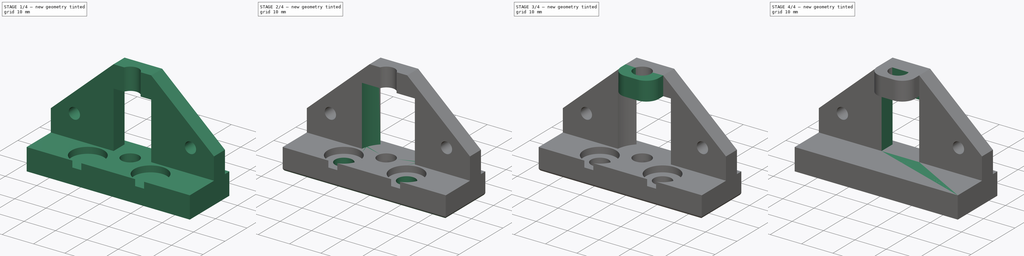
[diagram: build sequence overview — one tinted view per stage of 4, left to right]
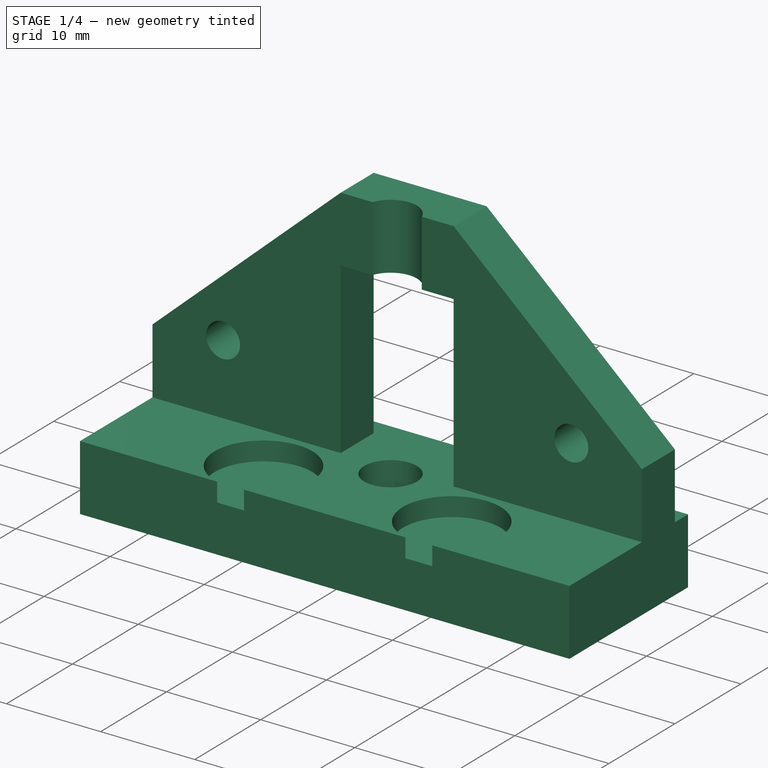
[diagram: stage 1 of 4 — iso view after this stage's code; geometry added in this stage tinted green]
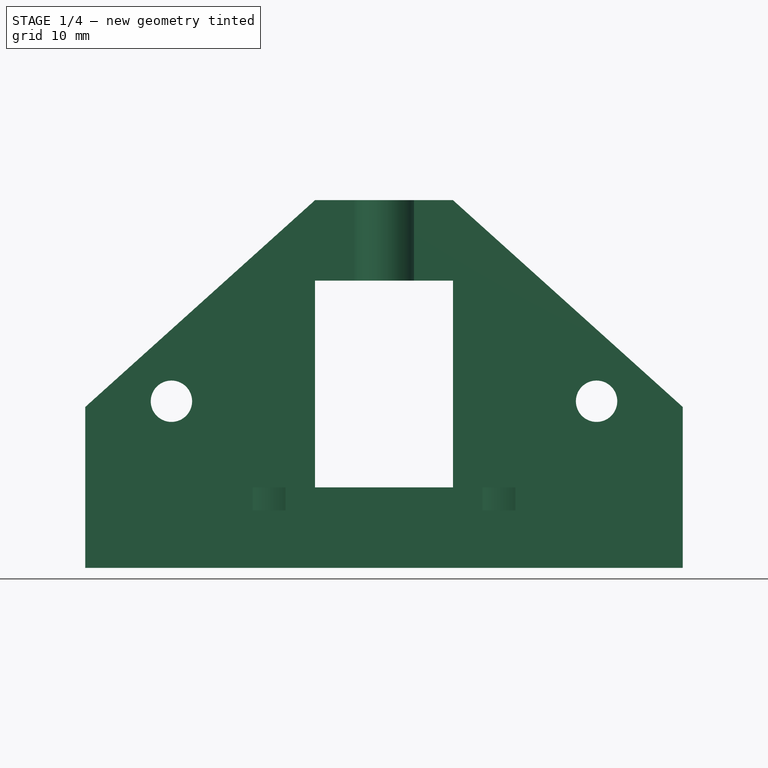
[diagram: stage 1 of 4 — front view after this stage's code; geometry added in this stage tinted green]
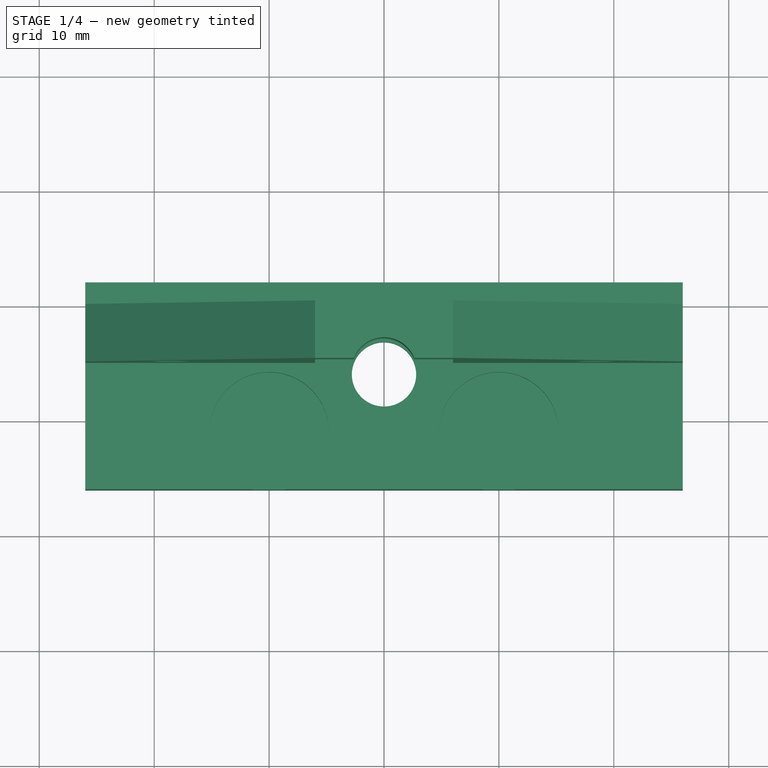
[diagram: stage 1 of 4 — top view after this stage's code; geometry added in this stage tinted green]
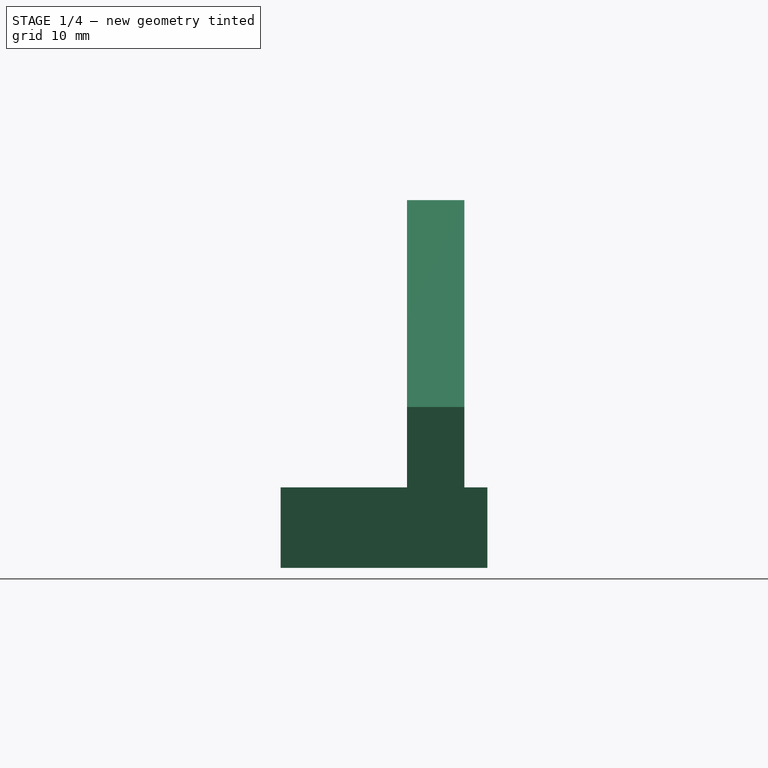
[diagram: stage 1 of 4 — right view after this stage's code; geometry added in this stage tinted green]
FCSTD DOCUMENT  (FreeCAD 0.16R6698 (Git))
Label: pnp head rail mount plate
License: All rights reserved
LicenseURL: http://en.wikipedia.org/wiki/All_rights_reserved
objects: Sketcher::SketchObject×10, PartDesign::Pocket×7, PartDesign::Pad×3, PartDesign::Fillet×2
note: 32 computed .brp shape members not serialized (recipe doc carries the construction recipe); baked Part::Feature solids carry a one-line shape summary decoded from their .brp

FEATURE [PartDesign::Pocket] Pocket002
  Length = 5
  Sketch = -> Sketch005
  Type = 0
FEATURE [Sketcher::SketchObject] Sketch004
  Placement = pos=(0,0,7) rot=(0,0,1;0rad)
  Support = -> Pocket002 [Face6]
  sketch-geometry (2):
    g0: Circle CenterX=-10 CenterY=-11 CenterZ=0 NormalX=0 NormalY=0 NormalZ=1 Radius=5.2
    g1: Circle CenterX=10 CenterY=-11 CenterZ=0 NormalX=0 NormalY=0 NormalZ=1 Radius=5.2
  constraints (2):
    c: Radius(g0) = 5.2
    c: Equal(g0,g1)
FEATURE [PartDesign::Pocket] Pocket003
  Length = 2
  Sketch = -> Sketch004
  Type = 0
FEATURE [Sketcher::SketchObject] Sketch008
  Placement = pos=(0,0,32) rot=(0,0,1;0rad)
  Support = -> Pocket003 [Face1]
  sketch-geometry (1):
    g0: Circle CenterX=0 CenterY=-6 CenterZ=0 NormalX=0 NormalY=0 NormalZ=1 Radius=2.8
  constraints (2):
    c: PointOnObject(g0,g-2)
    c: Radius(g0) = 2.8
FEATURE [PartDesign::Pocket] Pocket005
  Length = 5
  Sketch = -> Sketch008
  Type = 1
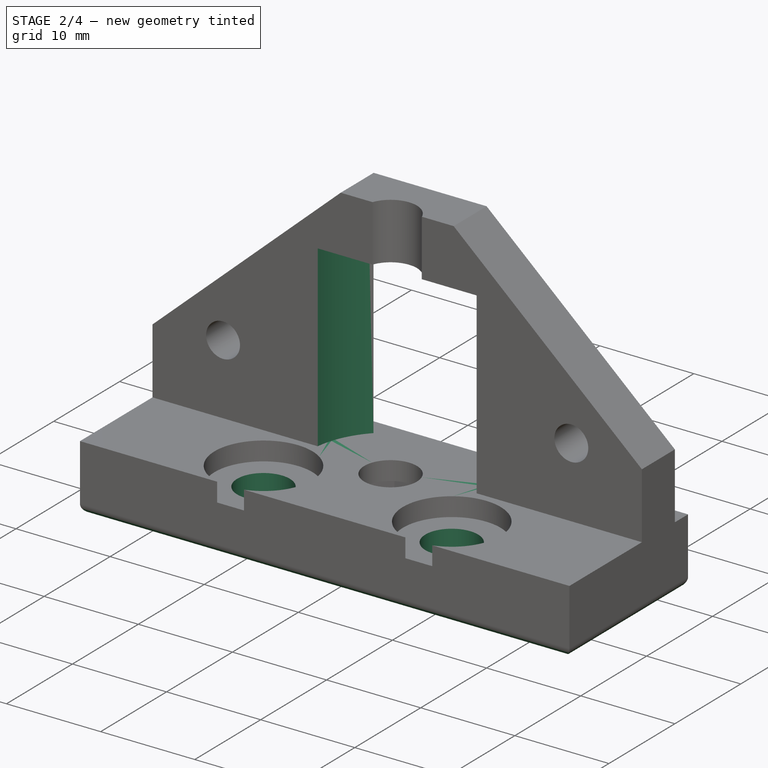
[diagram: stage 2 of 4 — iso view after this stage's code; geometry added in this stage tinted green]
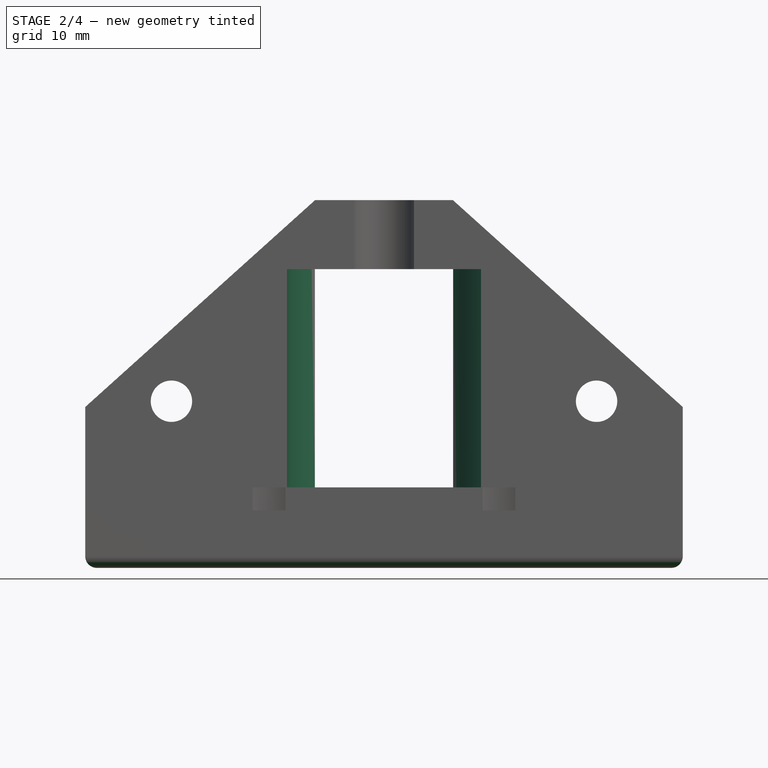
[diagram: stage 2 of 4 — front view after this stage's code; geometry added in this stage tinted green]
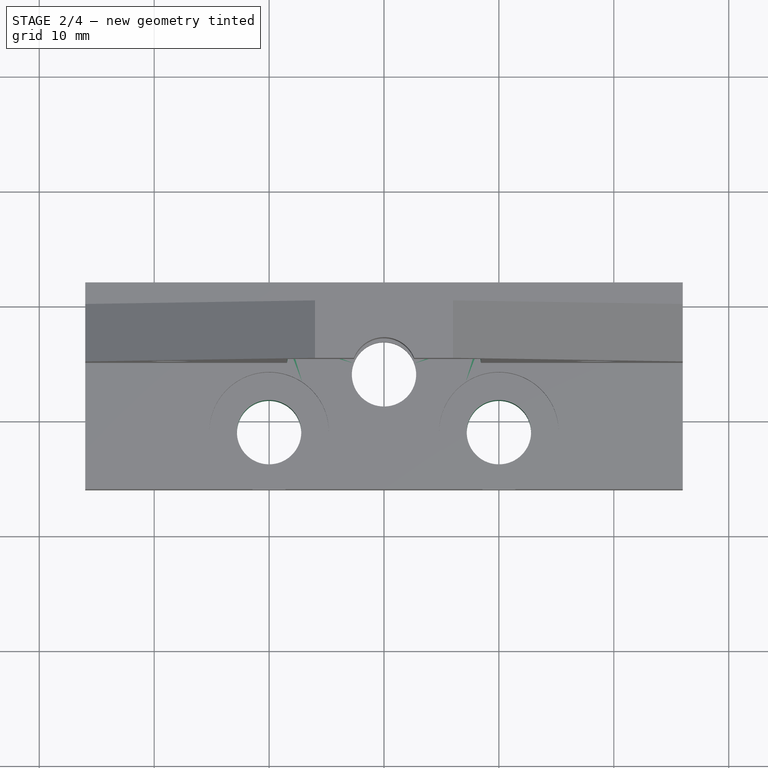
[diagram: stage 2 of 4 — top view after this stage's code; geometry added in this stage tinted green]
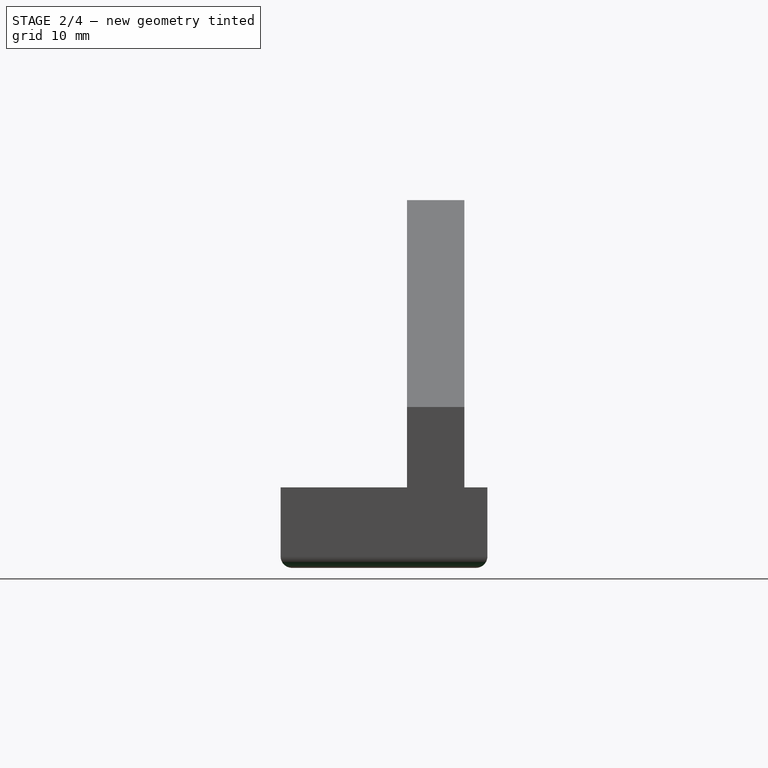
[diagram: stage 2 of 4 — right view after this stage's code; geometry added in this stage tinted green]
FEATURE [Sketcher::SketchObject] Sketch003
  Placement = pos=(0,0,7) rot=(0,0,1;0rad)
  Support = -> Pocket005 [Face8]
  sketch-geometry (4):
    g0: Circle CenterX=0 CenterY=-6 CenterZ=0 NormalX=0 NormalY=0 NormalZ=1 Radius=2.8
    g1: Circle CenterX=10 CenterY=-11 CenterZ=0 NormalX=0 NormalY=0 NormalZ=1 Radius=2.8
    g2: Circle CenterX=-10 CenterY=-11 CenterZ=0 NormalX=0 NormalY=0 NormalZ=1 Radius=2.8
    g3: Circle [constr] CenterX=0 CenterY=-6 CenterZ=0 NormalX=0 NormalY=0 NormalZ=1 Radius=5.5
  constraints (8):
    c: PointOnObject(g0,g-2)
    c: Radius(g0) = 2.8
    c: Equal(g2,g0)
    c: Equal(g0,g1)
    c: Symmetric(g2,g1,g-2)
    c: DistanceX(g2,g-1) = 10
    c: Coincident(g3,g0)
    c: Radius(g3) = 5.5
FEATURE [PartDesign::Pocket] Pocket006
  Length = 5
  Sketch = -> Sketch003
  Type = 1
FEATURE [Sketcher::SketchObject] Sketch009
  Placement = pos=(0,0,7) rot=(0,0,1;0rad)
  Support = -> Pocket006 [Face8]
  sketch-geometry (1):
    g0: Circle CenterX=0 CenterY=-6 CenterZ=0 NormalX=0 NormalY=0 NormalZ=1 Radius=8.5
FEATURE [PartDesign::Pocket] Pocket007
  Length = 19
  Reversed = true
  Sketch = -> Sketch009
  Type = 0
FEATURE [PartDesign::Fillet] Fillet001
  Base = -> Pocket007 [Edge46,Edge53,Edge51,Edge41]
  Radius = 1
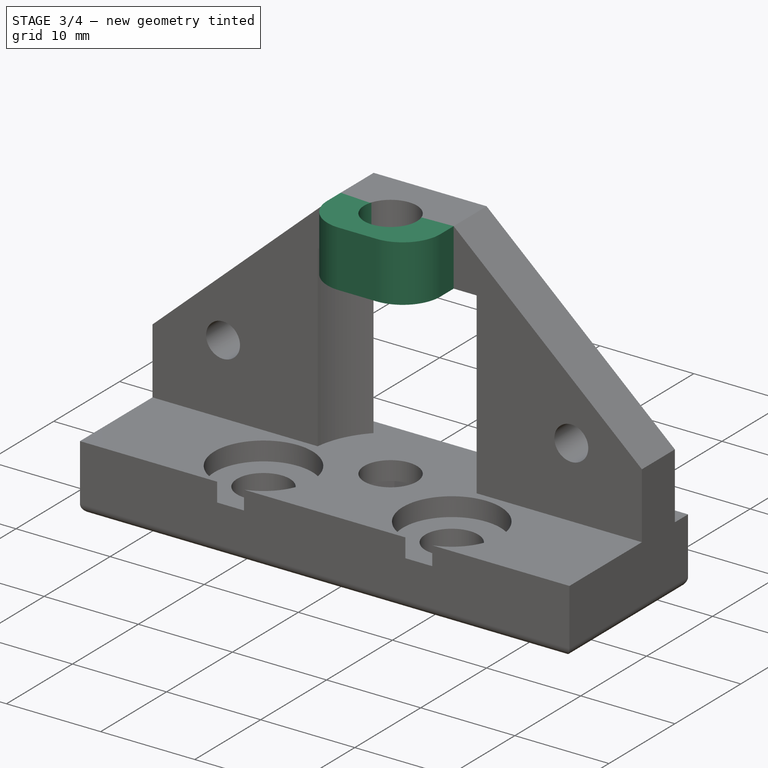
[diagram: stage 3 of 4 — iso view after this stage's code; geometry added in this stage tinted green]
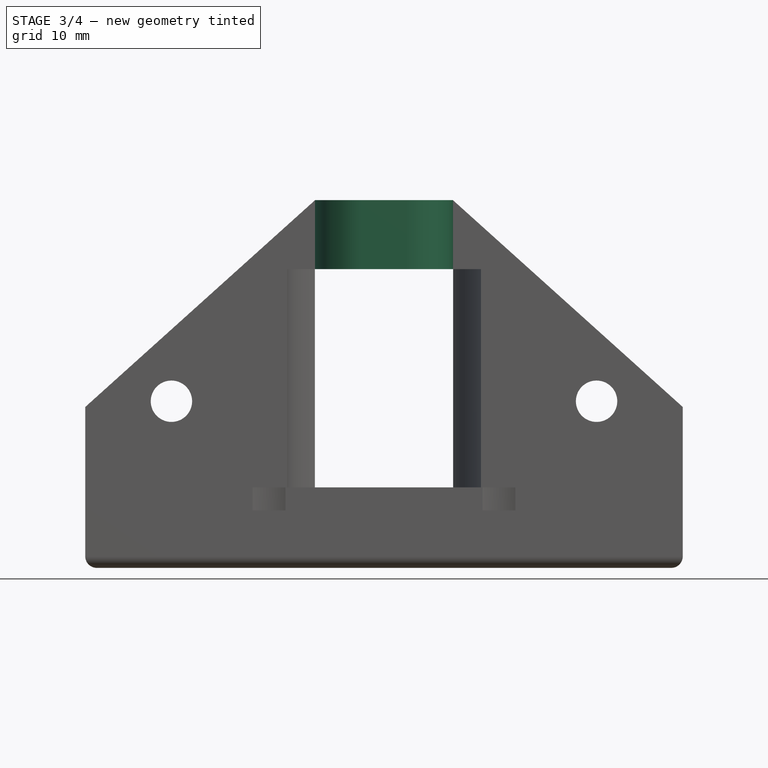
[diagram: stage 3 of 4 — front view after this stage's code; geometry added in this stage tinted green]
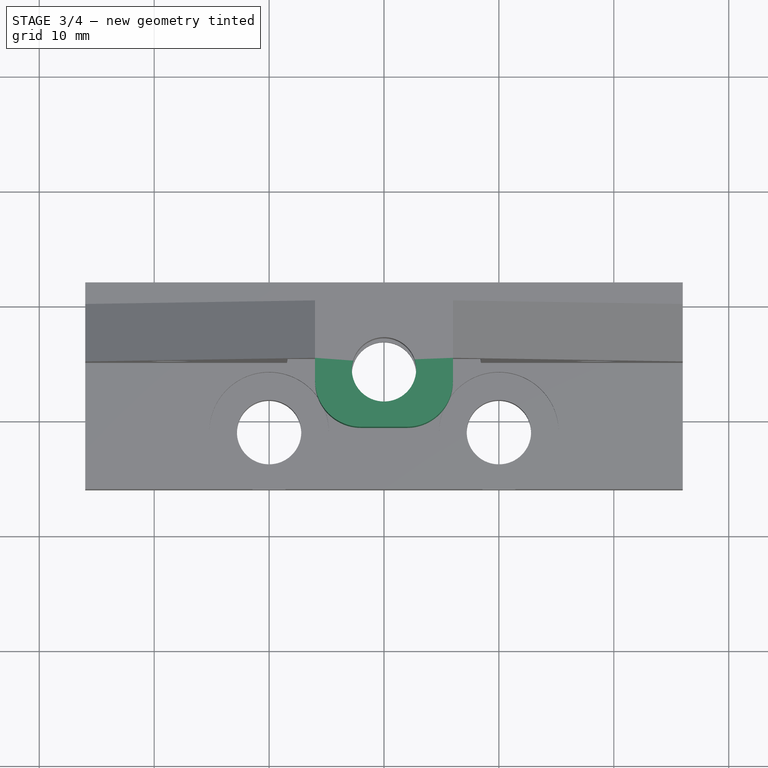
[diagram: stage 3 of 4 — top view after this stage's code; geometry added in this stage tinted green]
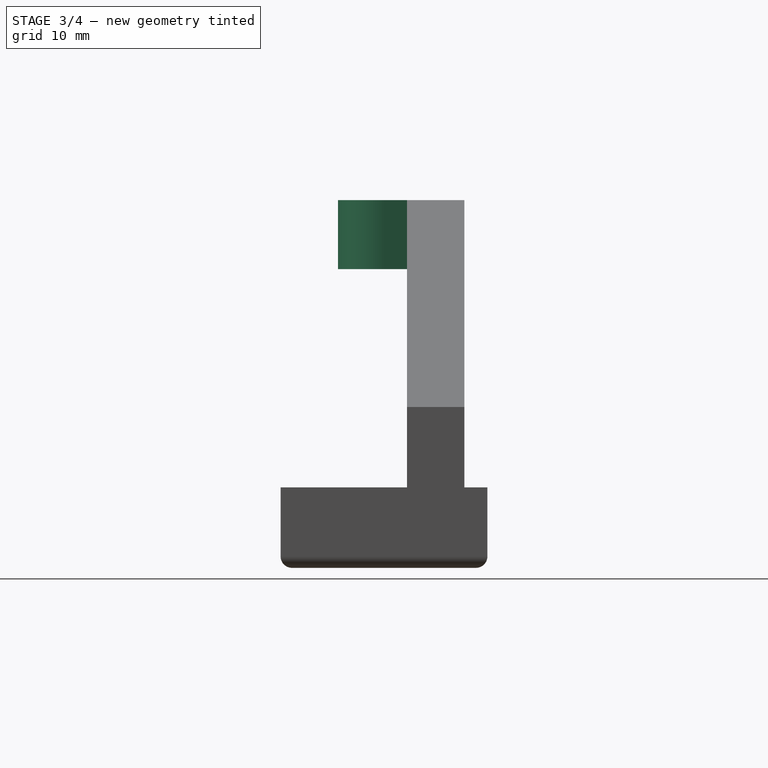
[diagram: stage 3 of 4 — right view after this stage's code; geometry added in this stage tinted green]
FEATURE [Sketcher::SketchObject] Sketch006
  Placement = pos=(0,-5,0) rot=(1,0,0;1.5708rad)
  sketch-geometry (4):
    g0: LineSegment StartX=-6 StartY=32 StartZ=0 EndX=6 EndY=32 EndZ=0
    g1: LineSegment StartX=6 StartY=32 StartZ=0 EndX=6 EndY=26 EndZ=0
    g2: LineSegment StartX=6 StartY=26 StartZ=0 EndX=-6 EndY=26 EndZ=0
    g3: LineSegment StartX=-6 StartY=26 StartZ=0 EndX=-6 EndY=32 EndZ=0
  constraints (8):
    c: Coincident(g0,g1)
    c: Coincident(g1,g2)
    c: Coincident(g2,g3)
    c: Coincident(g3,g0)
    c: Horizontal(g0)
    c: Horizontal(g2)
    c: Vertical(g1)
    c: Vertical(g3)
FEATURE [PartDesign::Pad] Pad002
  Length = 6
  Length2 = 100
  Placement = pos=(0,-5,0) rot=(1,0,0;1.5708rad)
  Sketch = -> Sketch006
  Type = 0
FEATURE [Sketcher::SketchObject] Sketch007
  Placement = pos=(0,-5,32) rot=(0,0,1;3.14159rad)
  Support = -> Pad002 [Face1]
  sketch-geometry (1):
    g0: Circle CenterX=0 CenterY=1 CenterZ=0 NormalX=0 NormalY=0 NormalZ=1 Radius=2.8
  constraints (2):
    c: PointOnObject(g0,g-2)
    c: Radius(g0) = 2.8
FEATURE [PartDesign::Pocket] Pocket004
  Length = 5
  Placement = pos=(0,-5,0) rot=(1,0,0;1.5708rad)
  Sketch = -> Sketch007
  Type = 1
FEATURE [PartDesign::Fillet] Fillet
  Base = -> Pocket004 [Edge17,Edge15]
  Placement = pos=(0,-5,0) rot=(1,0,0;1.5708rad)
  Radius = 4
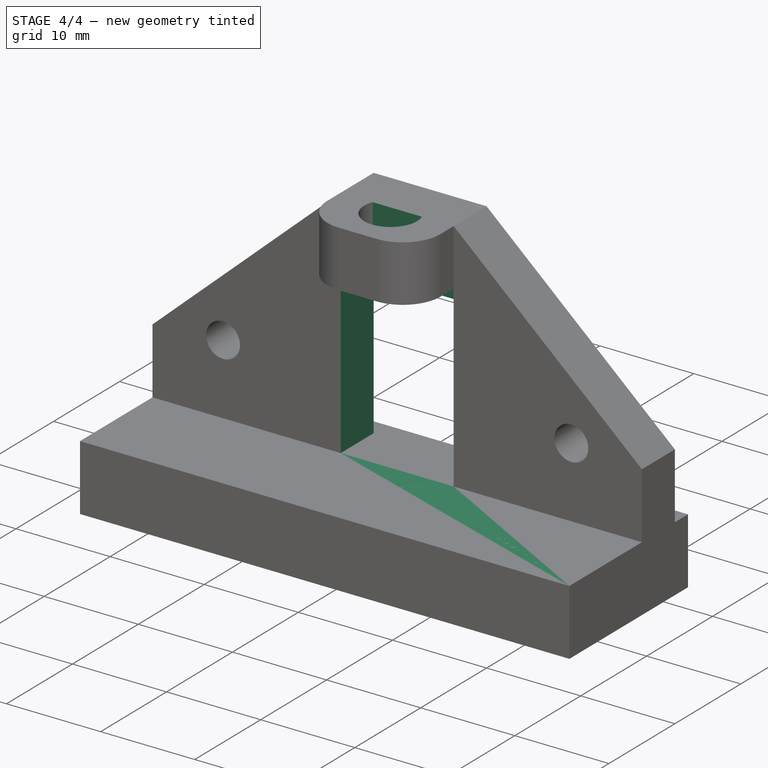
[diagram: stage 4 of 4 — iso view after this stage's code; geometry added in this stage tinted green]
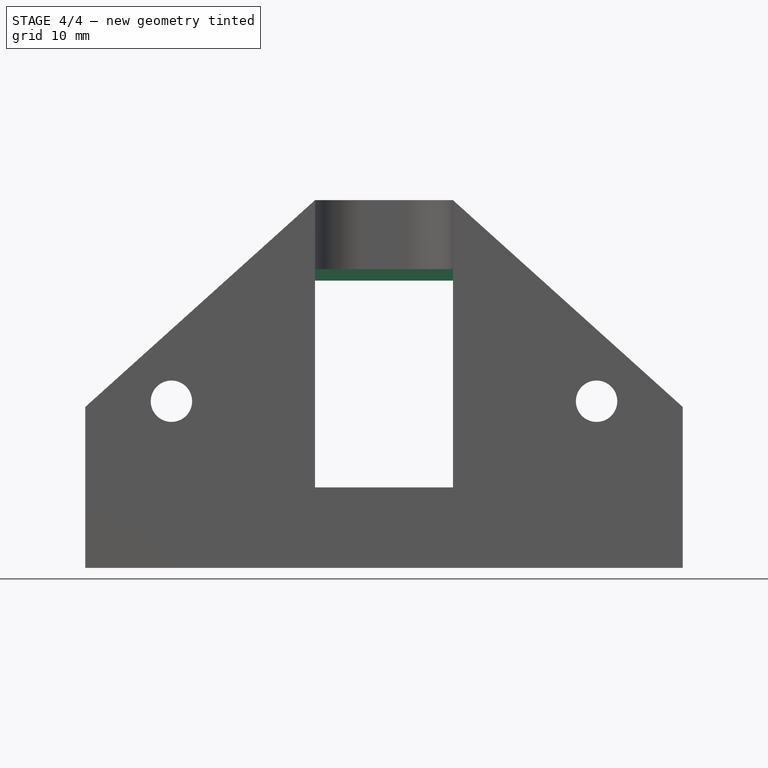
[diagram: stage 4 of 4 — front view after this stage's code; geometry added in this stage tinted green]
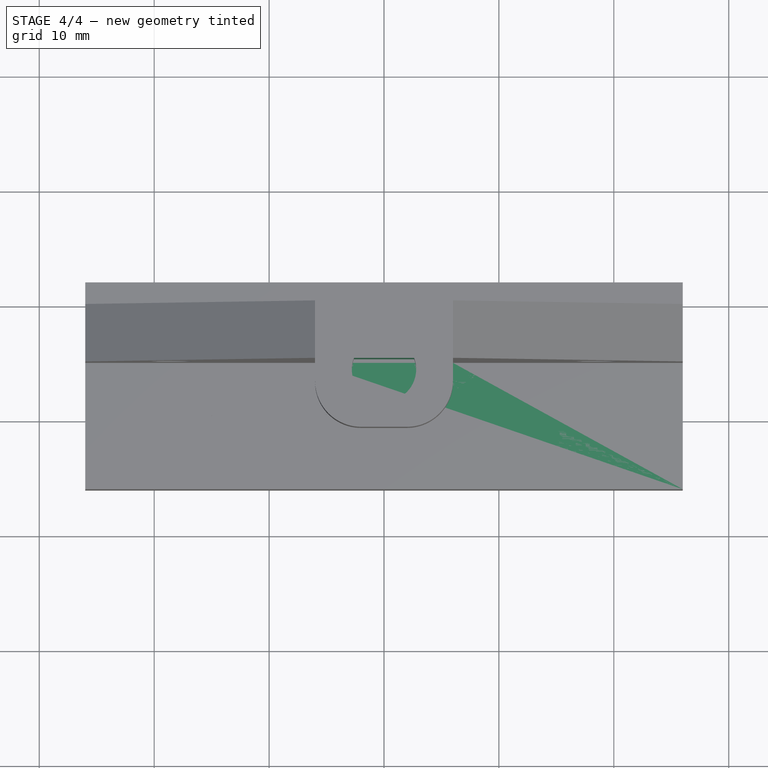
[diagram: stage 4 of 4 — top view after this stage's code; geometry added in this stage tinted green]
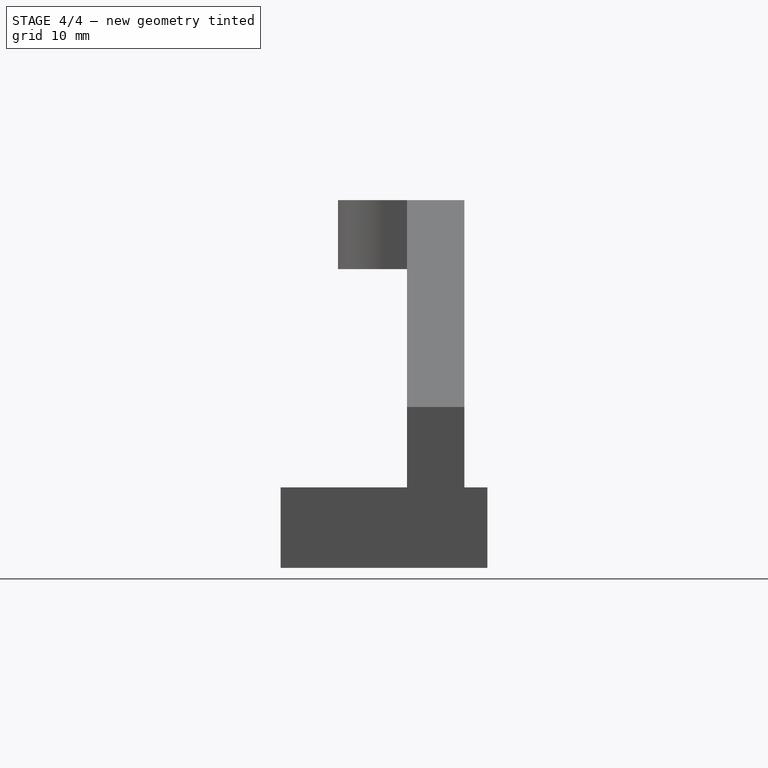
[diagram: stage 4 of 4 — right view after this stage's code; geometry added in this stage tinted green]
FEATURE [Sketcher::SketchObject] Sketch
  sketch-geometry (22):
    g0: LineSegment StartX=-26 StartY=-16 StartZ=0 EndX=26 EndY=-16 EndZ=0
    g1: LineSegment StartX=26 StartY=-16 StartZ=0 EndX=26 EndY=2 EndZ=0
    g2: LineSegment StartX=26 StartY=2 StartZ=0 EndX=-26 EndY=2 EndZ=0
    g3: LineSegment StartX=-26 StartY=2 StartZ=0 EndX=-26 EndY=-16 EndZ=0
    g4: Circle [constr] CenterX=0 CenterY=96.659 CenterZ=0 NormalX=0 NormalY=0 NormalZ=1 Radius=5.5
    g5: LineSegment [constr] StartX=-26 StartY=120 StartZ=0 EndX=-11 EndY=120 EndZ=0
    g6: LineSegment [constr] StartX=-11 StartY=120 StartZ=0 EndX=-11 EndY=0 EndZ=0
    g7: LineSegment [constr] StartX=-11 StartY=0 StartZ=0 EndX=-26 EndY=0 EndZ=0
    g8: LineSegment [constr] StartX=-26 StartY=0 StartZ=0 EndX=-26 EndY=120 EndZ=0
    g9: LineSegment [constr] StartX=11 StartY=120 StartZ=0 EndX=26 EndY=120 EndZ=0
    g10: LineSegment [constr] StartX=26 StartY=120 StartZ=0 EndX=26 EndY=0 EndZ=0
    g11: LineSegment [constr] StartX=26 StartY=0 StartZ=0 EndX=11 EndY=0 EndZ=0
    g12: LineSegment [constr] StartX=11 StartY=0 StartZ=0 EndX=11 EndY=120 EndZ=0
    g13: LineSegment [constr] StartX=31.6551 StartY=115 StartZ=0 EndX=71.6551 EndY=115 EndZ=0
    g14: LineSegment [constr] StartX=71.6551 StartY=115 StartZ=0 EndX=71.6551 EndY=92.2249 EndZ=0
    g15: LineSegment [constr] StartX=71.6551 StartY=92.2249 StartZ=0 EndX=31.6551 EndY=92.2249 EndZ=0
    g16: LineSegment [constr] StartX=31.6551 StartY=92.2249 StartZ=0 EndX=31.6551 EndY=115 EndZ=0
    g17: LineSegment [constr] StartX=-11 StartY=96.659 StartZ=0 EndX=11 EndY=96.659 EndZ=0
    g18: Circle [constr] CenterX=-10 CenterY=-5.79887 CenterZ=0 NormalX=0 NormalY=0 NormalZ=1 Radius=3
    g19: Circle [constr] CenterX=10 CenterY=-6 CenterZ=0 NormalX=0 NormalY=0 NormalZ=1 Radius=3
    g20: LineSegment StartX=-18.5 StartY=123.22 StartZ=0 EndX=-18.5 EndY=114.78 EndZ=0
    g21: LineSegment StartX=18.5 StartY=123.375 StartZ=0 EndX=18.5 EndY=115.247 EndZ=0
  constraints (53):
    c: Coincident(g0,g1)
    c: Coincident(g1,g2)
    c: Coincident(g2,g3)
    c: Coincident(g3,g0)
    c: Horizontal(g0)
    c: Horizontal(g2)
    c: Vertical(g1)
    c: Vertical(g3)
    c: Radius(g4) = 5.5
    c: Coincident(g5,g6)
    c: Coincident(g6,g7)
    c: Coincident(g7,g8)
    c: Coincident(g8,g5)
    c: Horizontal(g5)
    c: Horizontal(g7)
    c: Vertical(g6)
    c: Vertical(g8)
    c: DistanceX(g5,g5) = 15
    c: DistanceY(g8,g8) = 120
    c: Coincident(g9,g10)
    c: Coincident(g10,g11)
    c: Coincident(g11,g12)
    c: Coincident(g12,g9)
    c: Horizontal(g9)
    c: Horizontal(g11)
    c: Vertical(g10)
    c: Vertical(g12)
    c: DistanceX(g9,g9) = 15
    c: DistanceY(g12,g12) = 120
    c: Coincident(g13,g14)
    c: Coincident(g14,g15)
    c: Coincident(g15,g16)
    c: Coincident(g16,g13)
    c: Horizontal(g13)
    c: Horizontal(g15)
    c: Vertical(g14)
    c: Vertical(g16)
    c: DistanceX(g13,g13) = 40
    c: DistanceX(g2,g2) = 52
    c: Symmetric(g0,g0,g-2)
    c: PointOnObject(g17,g6)
    c: PointOnObject(g17,g12)
    c: Horizontal(g17)
    c: PointOnObject(g4,g17)
    c: Symmetric(g17,g17,g4)
    c: PointOnObject(g4,g-2)
    c: DistanceX(g18,g19) = 20
    c: Radius(g18) = 3
    c: Equal(g18,g19)
    c: Vertical(g20)
    c: Vertical(g21)
    c: Symmetric(g9,g9,g21)
    c: Symmetric(g5,g5,g20)
FEATURE [PartDesign::Pad] Pad
  Length = 7
  Length2 = 100
  Sketch = -> Sketch
  Type = 0
FEATURE [Sketcher::SketchObject] Sketch001
  Placement = pos=(0,0,7) rot=(0,0,1;0rad)
  Support = -> Pad [Face6]
  sketch-geometry (4):
    g0: LineSegment StartX=-26 StartY=0 StartZ=0 EndX=26 EndY=0 EndZ=0
    g1: LineSegment StartX=26 StartY=0 StartZ=0 EndX=26 EndY=-5 EndZ=0
    g2: LineSegment StartX=26 StartY=-5 StartZ=0 EndX=-26 EndY=-5 EndZ=0
    g3: LineSegment StartX=-26 StartY=-5 StartZ=0 EndX=-26 EndY=0 EndZ=0
  constraints (9):
    c: Coincident(g0,g1)
    c: Coincident(g1,g2)
    c: Coincident(g2,g3)
    c: Coincident(g3,g0)
    c: Horizontal(g0)
    c: Horizontal(g2)
    c: Vertical(g1)
    c: Vertical(g3)
    c: PointOnObject(g0,g-1)
FEATURE [PartDesign::Pad] Pad001
  Length = 25
  Length2 = 100
  Sketch = -> Sketch001
  Type = 0
FEATURE [Sketcher::SketchObject] Sketch002
  Placement = pos=(0,-5,0) rot=(1,0,0;1.5708rad)
  Support = -> Pad001 [Face3]
  sketch-geometry (14):
    g0: Circle CenterX=-18.5 CenterY=14.5 CenterZ=0 NormalX=0 NormalY=0 NormalZ=1 Radius=1.8
    g1: Circle CenterX=18.5 CenterY=14.5 CenterZ=0 NormalX=0 NormalY=0 NormalZ=1 Radius=1.8
    g2: LineSegment [constr] StartX=14.1809 StartY=7 StartZ=0 EndX=21 EndY=7 EndZ=0
    g3: LineSegment StartX=-6 StartY=25 StartZ=0 EndX=6 EndY=25 EndZ=0
    g4: LineSegment StartX=6 StartY=25 StartZ=0 EndX=6 EndY=7 EndZ=0
    g5: LineSegment StartX=6 StartY=7 StartZ=0 EndX=-6 EndY=7 EndZ=0
    g6: LineSegment StartX=-6 StartY=7 StartZ=0 EndX=-6 EndY=25 EndZ=0
    g7: LineSegment StartX=-26 StartY=14 StartZ=0 EndX=-6 EndY=32 EndZ=0
    g8: LineSegment StartX=-6 StartY=32 StartZ=0 EndX=-26 EndY=32 EndZ=0
    g9: LineSegment StartX=-26 StartY=32 StartZ=0 EndX=-26 EndY=14 EndZ=0
    g10: LineSegment StartX=6 StartY=32 StartZ=0 EndX=26 EndY=14 EndZ=0
    g11: LineSegment StartX=26 StartY=14 StartZ=0 EndX=26 EndY=32 EndZ=0
    g12: LineSegment StartX=26 StartY=32 StartZ=0 EndX=6 EndY=32 EndZ=0
    g13: LineSegment [constr] StartX=-36 StartY=7 StartZ=0 EndX=33.3416 EndY=7 EndZ=0
  constraints (25):
    c: Radius(g0) = 1.8
    c: Equal(g0,g1)
    c: DistanceX(g0,g1) = 37
    c: Symmetric(g0,g1,g-2)
    c: Horizontal(g2)
    c: DistanceY(g2,g1) = 7.5
    c: Coincident(g3,g4)
    c: Coincident(g4,g5)
    c: Coincident(g5,g6)
    c: Coincident(g6,g3)
    c: Horizontal(g3)
    c: Horizontal(g5)
    c: Vertical(g4)
    c: Vertical(g6)
    c: Coincident(g7,g8)
    c: Horizontal(g8)
    c: Coincident(g8,g9)
    c: Coincident(g7,g9)
    c: Vertical(g9)
    c: Coincident(g10,g11)
    c: Vertical(g11)
    c: Coincident(g11,g12)
    c: Coincident(g12,g10)
    c: Horizontal(g12)
    c: Horizontal(g13)
FEATURE [Sketcher::SketchObject] Sketch005
  Placement = pos=(0,0,0) rot=(1,0,0;3.14159rad)
  sketch-geometry (7):
    g0: LineSegment StartX=4.79137 StartY=5.92174 StartZ=0 EndX=2.46346 EndY=10.1103 EndZ=0
    g1: LineSegment StartX=2.46346 StartY=10.1103 StartZ=0 EndX=-2.32791 EndY=10.1886 EndZ=0
    g2: LineSegment StartX=-2.32791 StartY=10.1886 StartZ=0 EndX=-4.79137 EndY=6.07826 EndZ=0
    g3: LineSegment StartX=-4.79137 StartY=6.07826 StartZ=0 EndX=-2.46346 EndY=1.88968 EndZ=0
    g4: LineSegment StartX=-2.46346 StartY=1.88968 StartZ=0 EndX=2.32791 EndY=1.81142 EndZ=0
    g5: LineSegment StartX=2.32791 StartY=1.81142 StartZ=0 EndX=4.79137 EndY=5.92174 EndZ=0
    g6: Circle [constr] CenterX=0 CenterY=6 CenterZ=0 NormalX=0 NormalY=0 NormalZ=1 Radius=4.79201
  constraints (15):
    c: Coincident(g0,g1)
    c: Coincident(g1,g2)
    c: Coincident(g2,g3)
    c: Coincident(g3,g4)
    c: Coincident(g4,g5)
    c: Coincident(g5,g0)
    c: Equal(g0, g1-g5) x5
    c: PointOnObject(g0,g6)
    c: PointOnObject(g1,g6)
    c: PointOnObject(g2,g6)
    c: PointOnObject(g3,g6)
    c: PointOnObject(g4,g6)
    c: PointOnObject(g5,g6)
    c: PointOnObject(g6,g-2)
    c: Distance(g1,g0) = 8.3
FEATURE [PartDesign::Pocket] Pocket
  Length = 5
  Sketch = -> Sketch002
  Type = 0
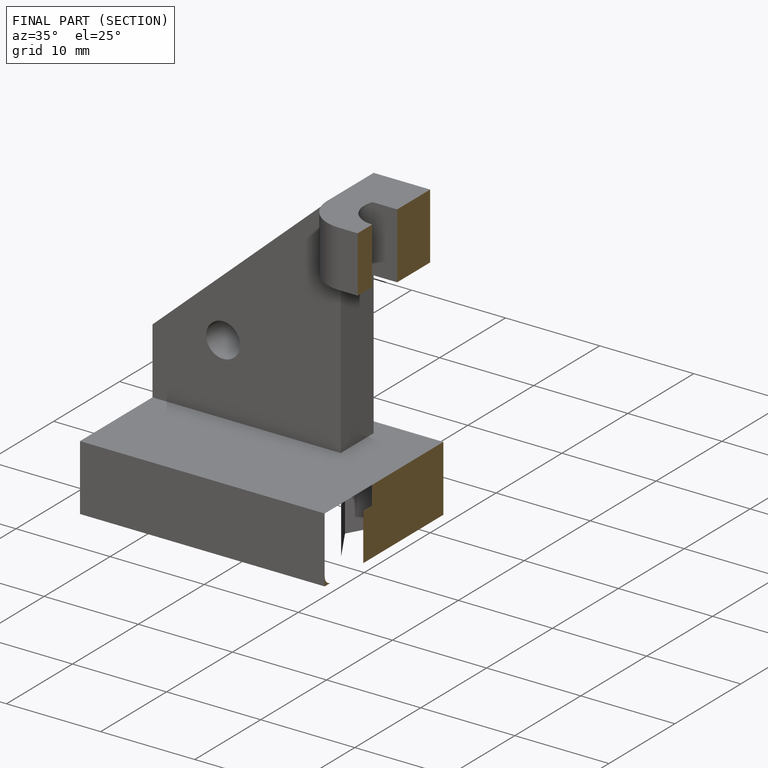
[diagram: finished part — half-section view (interior)]
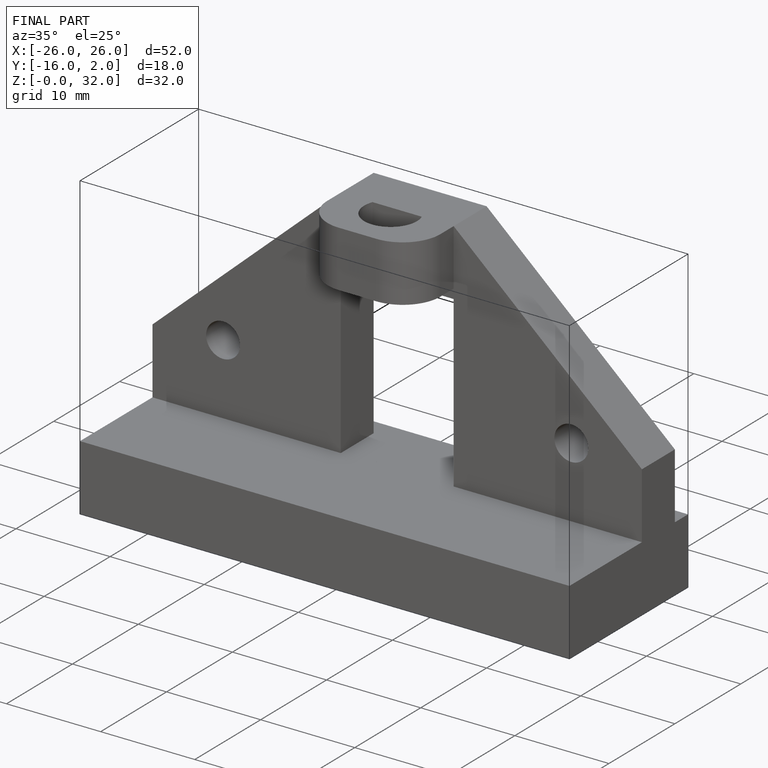
[diagram: finished part — iso view with bounding-box wireframe]
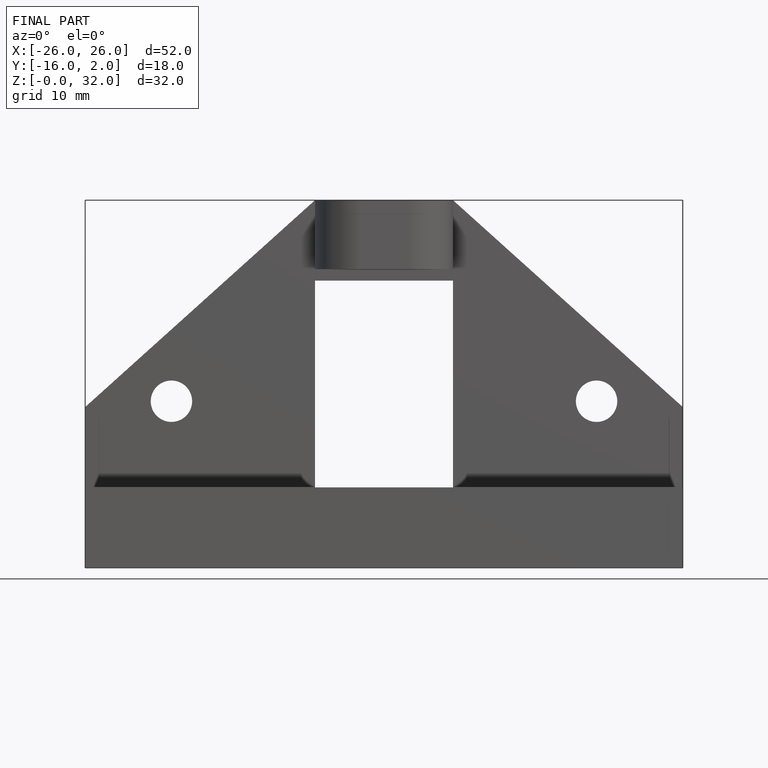
[diagram: finished part — front view with bounding-box wireframe]
